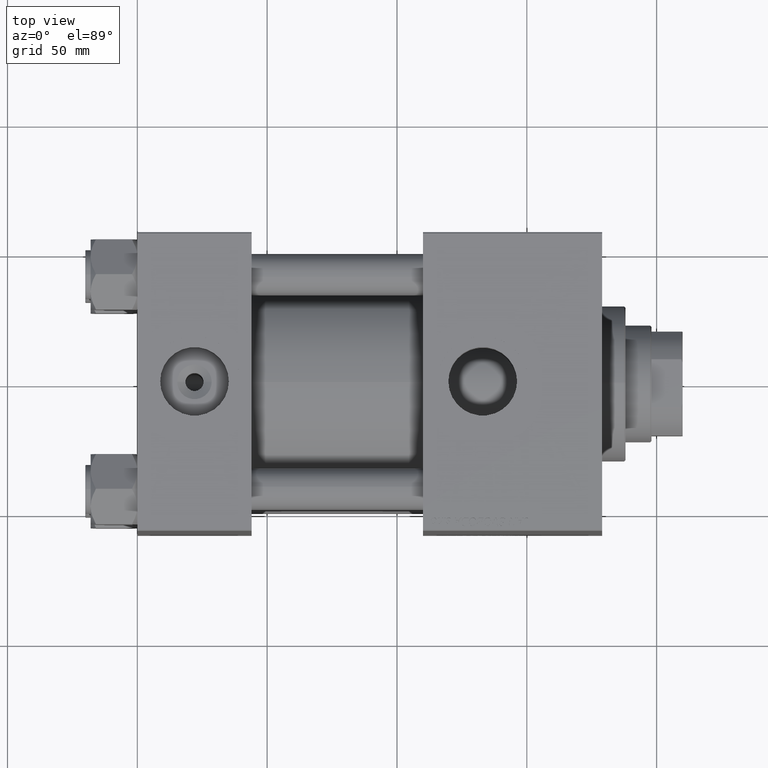
[diagram: clean part render]
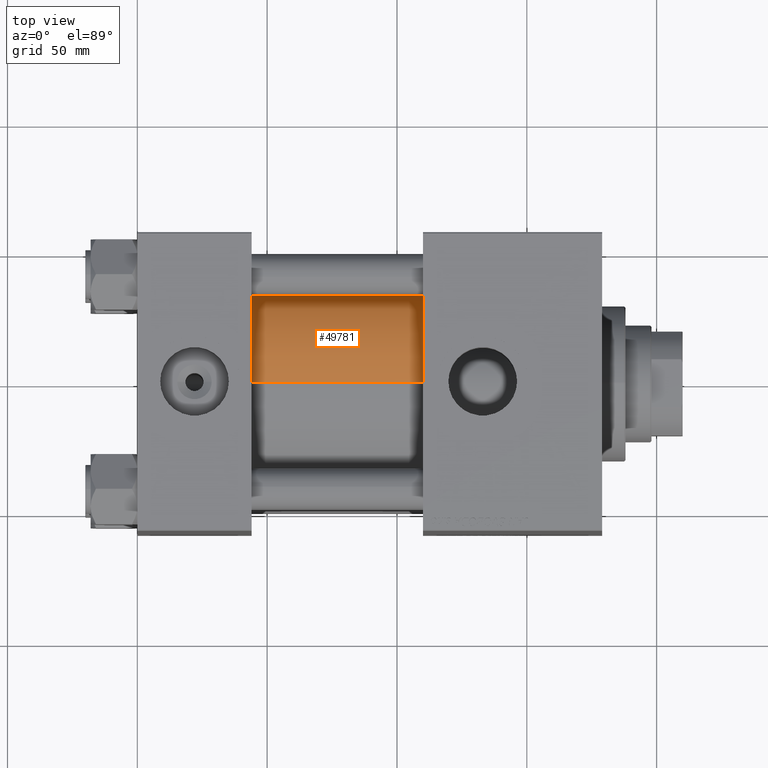
[diagram: same view with one face highlighted and labeled with its STEP entity id]
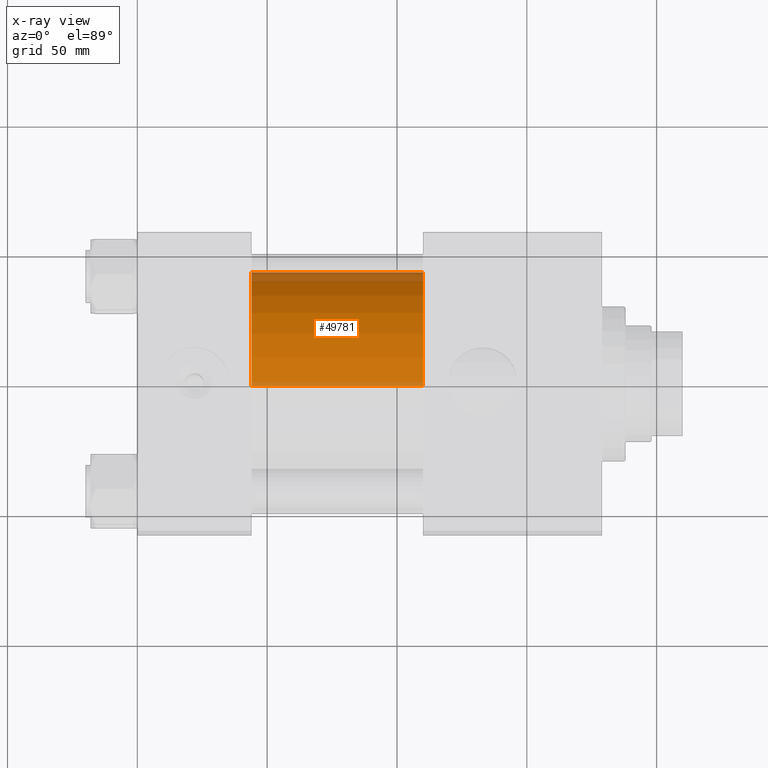
[diagram: x-ray of the same camera — body ghosted, the highlighted face saturated]
A machine part, top view. The second image highlights one B-rep face of the part: STEP entity #49781.
The next image is the same camera in x-ray: the body ghosted, the highlighted face saturated — about 12% of this face is hidden behind the body in this view.
In plain terms, the highlighted cylindrical surface (partial cylindrical patch) has radius 43 mm, axis along (-1, -0, -0).
Its self-contained STEP definition (entity closure, byte-faithful):
#4151 = DIRECTION ( 'NONE',  ( -1.000000000000000000, -0.000000000000000000, -0.000000000000000000 ) ) ;
#5484 = EDGE_CURVE ( 'NONE', #6946, #6227, #21546, .T. ) ;
#6227 = VERTEX_POINT ( 'NONE', #45924 ) ;
#6946 = VERTEX_POINT ( 'NONE', #8328 ) ;
#7618 = DIRECTION ( 'NONE',  ( -1.000000000000000000, -0.000000000000000000, -0.000000000000000000 ) ) ;
#7979 = CARTESIAN_POINT ( 'NONE',  ( 110.0000000000000000, 2.663896022368408223E-15, -43.00000000000000000 ) ) ;
#8328 = CARTESIAN_POINT ( 'NONE',  ( 44.00000000000000000, 2.663896022368408223E-15, -43.00000000000000000 ) ) ;
#12055 = VERTEX_POINT ( 'NONE', #24972 ) ;
#13654 = DIRECTION ( 'NONE',  ( 1.000000000000000000, 0.000000000000000000, 0.000000000000000000 ) ) ;
#14011 = CIRCLE ( 'NONE', #20554, 43.00000000000000000 ) ;
#14159 = DIRECTION ( 'NONE',  ( 0.000000000000000000, 0.000000000000000000, -1.000000000000000000 ) ) ;
#14554 = ORIENTED_EDGE ( 'NONE', *, *, #30645, .F. ) ;
#15630 = VERTEX_POINT ( 'NONE', #17528 ) ;
#15821 = EDGE_LOOP ( 'NONE', ( #14554, #43088, #25078, #43987 ) ) ;
#17528 = CARTESIAN_POINT ( 'NONE',  ( 110.0000000000000000, 2.663896022368408223E-15, -43.00000000000000000 ) ) ;
#18748 = VECTOR ( 'NONE', #4151, 1000.000000000000000 ) ;
#20356 = DIRECTION ( 'NONE',  ( -1.000000000000000000, -0.000000000000000000, -0.000000000000000000 ) ) ;
#20554 = AXIS2_PLACEMENT_3D ( 'NONE', #29275, #13654, #14159 ) ;
#20610 = DIRECTION ( 'NONE',  ( 0.000000000000000000, 0.000000000000000000, 1.000000000000000000 ) ) ;
#20699 = AXIS2_PLACEMENT_3D ( 'NONE', #40578, #20356, #20610 ) ;
#21546 = CIRCLE ( 'NONE', #40351, 43.00000000000000000 ) ;
#24972 = CARTESIAN_POINT ( 'NONE',  ( 110.0000000000000000, -2.602085213965210642E-15, 43.00000000000000000 ) ) ;
#25078 = ORIENTED_EDGE ( 'NONE', *, *, #5484, .T. ) ;
#27463 = LINE ( 'NONE', #7979, #18748 ) ;
#29275 = CARTESIAN_POINT ( 'NONE',  ( 110.0000000000000000, -2.602085213965210642E-15, 0.000000000000000000 ) ) ;
#30234 = CARTESIAN_POINT ( 'NONE',  ( 44.00000000000000000, -2.602085213965210642E-15, 0.000000000000000000 ) ) ;
#30645 = EDGE_CURVE ( 'NONE', #15630, #12055, #14011, .T. ) ;
#31882 = CARTESIAN_POINT ( 'NONE',  ( 110.0000000000000000, -2.602085213965210642E-15, 43.00000000000000000 ) ) ;
#34073 = DIRECTION ( 'NONE',  ( 0.000000000000000000, 0.000000000000000000, 1.000000000000000000 ) ) ;
#34957 = EDGE_CURVE ( 'NONE', #15630, #6946, #27463, .T. ) ;
#35030 = LINE ( 'NONE', #31882, #42544 ) ;
#35994 = FACE_OUTER_BOUND ( 'NONE', #15821, .T. ) ;
#37648 = DIRECTION ( 'NONE',  ( 1.000000000000000000, -0.000000000000000000, 0.000000000000000000 ) ) ;
#39823 = EDGE_CURVE ( 'NONE', #12055, #6227, #35030, .T. ) ;
#40351 = AXIS2_PLACEMENT_3D ( 'NONE', #30234, #37648, #34073 ) ;
#40578 = CARTESIAN_POINT ( 'NONE',  ( 110.0000000000000000, -2.602085213965210642E-15, 0.000000000000000000 ) ) ;
#42544 = VECTOR ( 'NONE', #7618, 1000.000000000000000 ) ;
#43088 = ORIENTED_EDGE ( 'NONE', *, *, #34957, .T. ) ;
#43987 = ORIENTED_EDGE ( 'NONE', *, *, #39823, .F. ) ;
#44422 = CYLINDRICAL_SURFACE ( 'NONE', #20699, 43.00000000000000000 ) ;
#45924 = CARTESIAN_POINT ( 'NONE',  ( 44.00000000000000000, -2.602085213965210642E-15, 43.00000000000000000 ) ) ;
#49781 = ADVANCED_FACE ( 'NONE', ( #35994 ), #44422, .T. ) ;